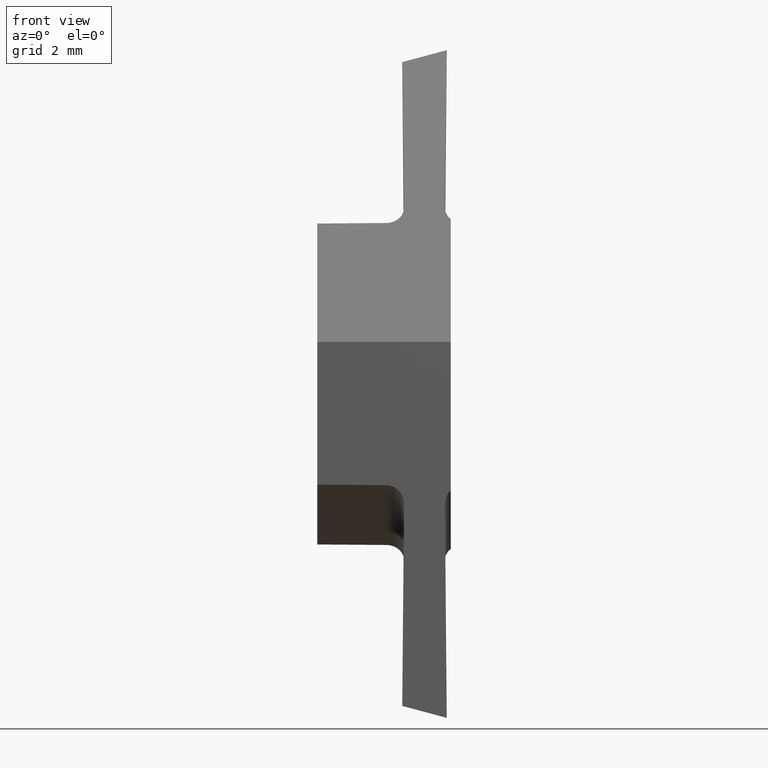
[diagram: clean part render]
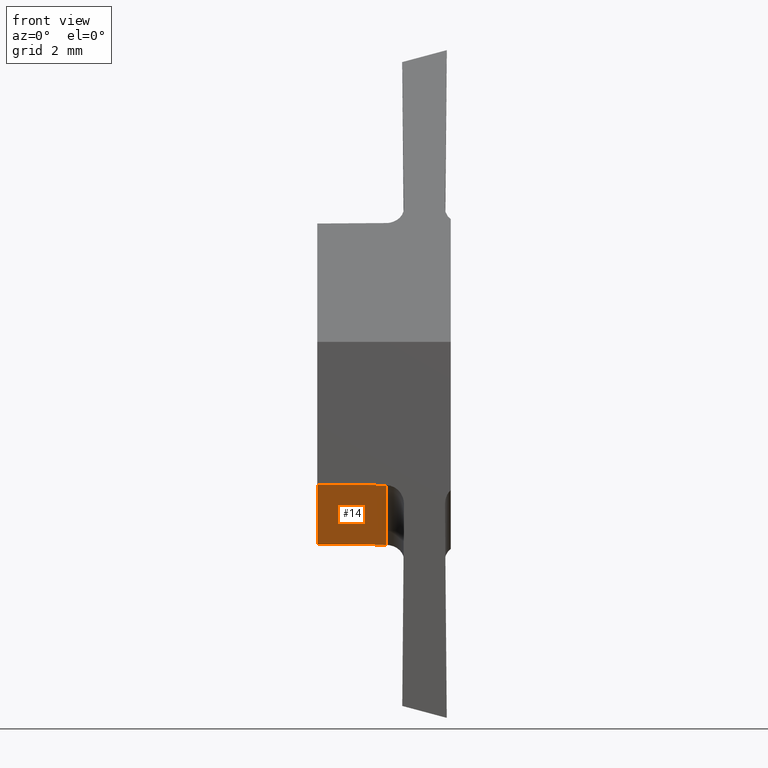
[diagram: same view with one face highlighted and labeled with its STEP entity id]
A machine part, front view. The second image highlights one B-rep face of the part: STEP entity #14.
In plain terms, the highlighted planar face has unit normal (0.0083, 0.309, 0.951).
Its self-contained STEP definition (entity closure, byte-faithful):
#5 = VECTOR ( 'NONE', #468, 1000.000000000000114 ) ;
#14 = ADVANCED_FACE ( 'NONE', ( #117 ), #608, .F. ) ;
#17 = ORIENTED_EDGE ( 'NONE', *, *, #351, .F. ) ;
#52 = AXIS2_PLACEMENT_3D ( 'NONE', #616, #357, #605 ) ;
#57 = ORIENTED_EDGE ( 'NONE', *, *, #214, .F. ) ;
#89 = CARTESIAN_POINT ( 'NONE',  ( 3.044585391019133613, 1.122994911595623257, -3.626537442286718704 ) ) ;
#92 = CARTESIAN_POINT ( 'NONE',  ( 1.552902005048489631, -2.998973231275686491, -2.274211081728251926 ) ) ;
#97 = LINE ( 'NONE', #245, #366 ) ;
#117 = FACE_OUTER_BOUND ( 'NONE', #276, .T. ) ;
#125 = LINE ( 'NONE', #269, #5 ) ;
#136 = LINE ( 'NONE', #89, #593 ) ;
#138 = EDGE_CURVE ( 'NONE', #595, #148, #136, .T. ) ;
#148 = VERTEX_POINT ( 'NONE', #283 ) ;
#176 = VECTOR ( 'NONE', #471, 1000.000000000000114 ) ;
#181 = DIRECTION ( 'NONE',  ( -0.9999623398293699950, 0.004977867723315087915, 0.007109131866878383617 ) ) ;
#214 = EDGE_CURVE ( 'NONE', #506, #418, #97, .T. ) ;
#245 = CARTESIAN_POINT ( 'NONE',  ( 2.971793399215882037, -2.999999999999831246, -2.286259941952640595 ) ) ;
#269 = CARTESIAN_POINT ( 'NONE',  ( -1.232658810657304681E-17, 3.961943090966158820, -4.522397928163644387 ) ) ;
#276 = EDGE_LOOP ( 'NONE', ( #286, #292, #57, #17 ) ) ;
#282 = CARTESIAN_POINT ( 'NONE',  ( -6.163294053286523407E-18, -2.999999999999831690, -2.260325493856243817 ) ) ;
#283 = CARTESIAN_POINT ( 'NONE',  ( 2.106771404438143542E-16, 1.138151025726298116, -3.604892268101038688 ) ) ;
#286 = ORIENTED_EDGE ( 'NONE', *, *, #138, .F. ) ;
#292 = ORIENTED_EDGE ( 'NONE', *, *, #524, .T. ) ;
#332 = CARTESIAN_POINT ( 'NONE',  ( 1.552902005048489409, -2.999999999999831246, -2.273877464346301114 ) ) ;
#351 = EDGE_CURVE ( 'NONE', #148, #506, #125, .T. ) ;
#357 = DIRECTION ( 'NONE',  ( 0.008299458626916070281, 0.3090063514897842256, 0.9510237608627200023 ) ) ;
#366 = VECTOR ( 'NONE', #391, 1000.000000000000000 ) ;
#386 = CARTESIAN_POINT ( 'NONE',  ( 1.552902005048489853, 1.130420593828511899, -3.615932469007118399 ) ) ;
#391 = DIRECTION ( 'NONE',  ( 0.9999619230641713097, 0.000000000000000000, -0.008726535498370685540 ) ) ;
#418 = VERTEX_POINT ( 'NONE', #332 ) ;
#468 = DIRECTION ( 'NONE',  ( 0.000000000000000000, -0.9510565162951555296, 0.3090169943749411230 ) ) ;
#471 = DIRECTION ( 'NONE',  ( 0.000000000000000000, -0.9510565162951555296, 0.3090169943749411785 ) ) ;
#506 = VERTEX_POINT ( 'NONE', #282 ) ;
#524 = EDGE_CURVE ( 'NONE', #595, #418, #617, .T. ) ;
#593 = VECTOR ( 'NONE', #181, 1000.000000000000227 ) ;
#595 = VERTEX_POINT ( 'NONE', #386 ) ;
#605 = DIRECTION ( 'NONE',  ( 0.000000000000000000, -0.9510565162951555296, 0.3090169943749411230 ) ) ;
#608 = PLANE ( 'NONE',  #52 ) ;
#616 = CARTESIAN_POINT ( 'NONE',  ( -1.232658810657304681E-17, 3.961943090966158820, -4.522397928163644387 ) ) ;
#617 = LINE ( 'NONE', #92, #176 ) ;